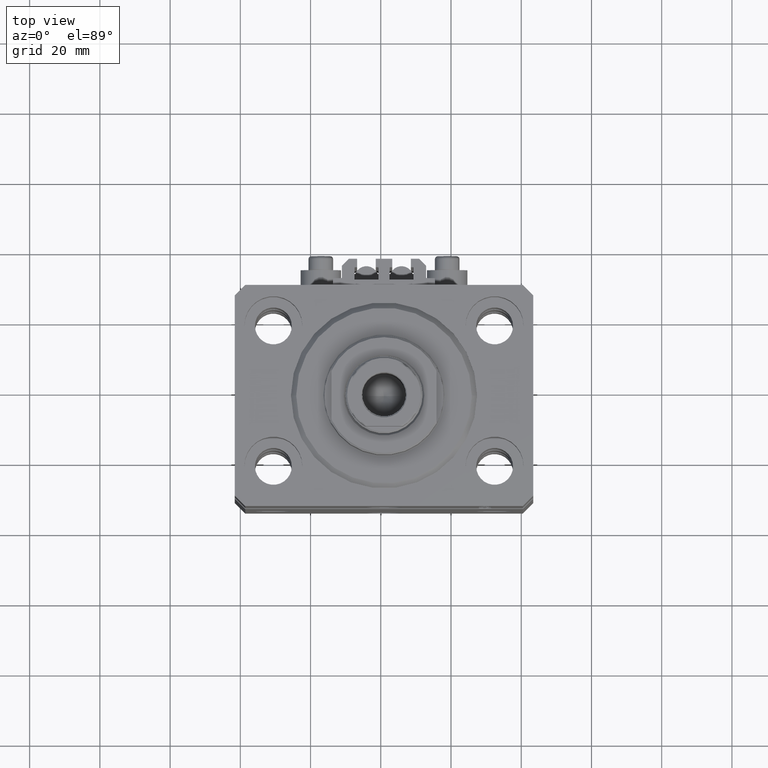
[diagram: clean part render]
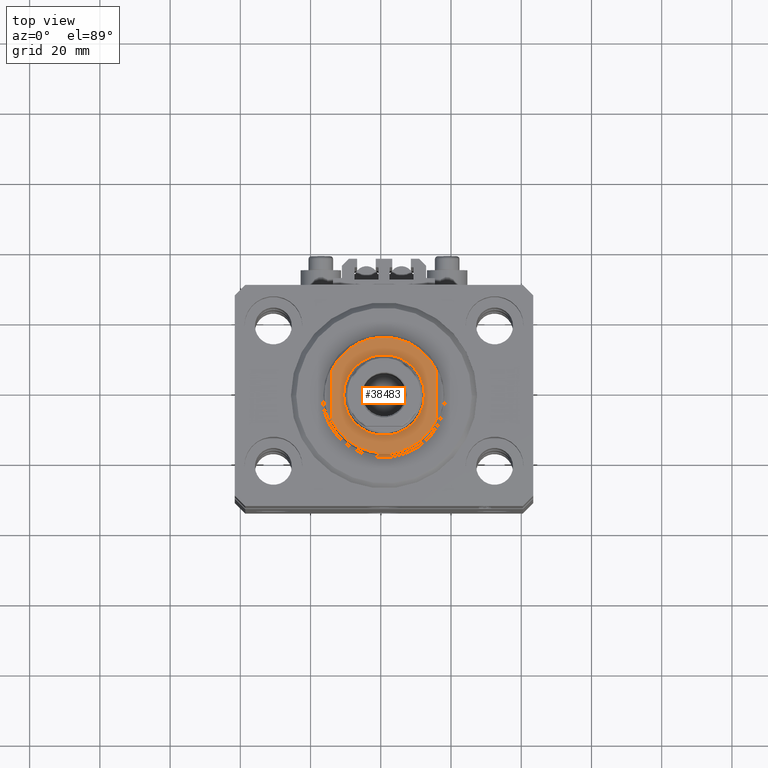
[diagram: same view with one face highlighted and labeled with its STEP entity id]
A machine part, top view. The second image highlights one B-rep face of the part: STEP entity #38483.
In plain terms, the highlighted planar face has unit normal (0, 0, 1).
Its self-contained STEP definition (entity closure, byte-faithful):
#845 = DIRECTION ( 'NONE',  ( -0.000000000000000000, -0.000000000000000000, 1.000000000000000000 ) ) ;
#1237 = AXIS2_PLACEMENT_3D ( 'NONE', #25934, #25696, #11089 ) ;
#2724 = ORIENTED_EDGE ( 'NONE', *, *, #17054, .T. ) ;
#3022 = CIRCLE ( 'NONE', #5373, 11.50000000000001776 ) ;
#3248 = CIRCLE ( 'NONE', #20607, 16.50000000000002132 ) ;
#4912 = CARTESIAN_POINT ( 'NONE',  ( -15.00000000000000000, -42.42640687119285303, -7.000000000000000000 ) ) ;
#5373 = AXIS2_PLACEMENT_3D ( 'NONE', #8024, #845, #46584 ) ;
#5876 = CARTESIAN_POINT ( 'NONE',  ( -14.99999999999999645, -6.873863542433817031, -7.000000000000000000 ) ) ;
#6098 = LINE ( 'NONE', #44194, #25763 ) ;
#6993 = DIRECTION ( 'NONE',  ( -1.000000000000000000, 0.000000000000000000, 0.000000000000000000 ) ) ;
#8024 = CARTESIAN_POINT ( 'NONE',  ( 0.000000000000000000, 0.000000000000000000, -7.000000000000000000 ) ) ;
#8501 = VERTEX_POINT ( 'NONE', #29513 ) ;
#9155 = ORIENTED_EDGE ( 'NONE', *, *, #35829, .T. ) ;
#10431 = ORIENTED_EDGE ( 'NONE', *, *, #34799, .F. ) ;
#11089 = DIRECTION ( 'NONE',  ( -1.000000000000000000, 0.000000000000000000, 0.000000000000000000 ) ) ;
#11197 = DIRECTION ( 'NONE',  ( 0.000000000000000000, 0.000000000000000000, -1.000000000000000000 ) ) ;
#11364 = VERTEX_POINT ( 'NONE', #5876 ) ;
#11861 = LINE ( 'NONE', #4912, #29778 ) ;
#13461 = AXIS2_PLACEMENT_3D ( 'NONE', #17266, #26085, #43486 ) ;
#14869 = ORIENTED_EDGE ( 'NONE', *, *, #35983, .T. ) ;
#17054 = EDGE_CURVE ( 'NONE', #39436, #8501, #3248, .T. ) ;
#17266 = CARTESIAN_POINT ( 'NONE',  ( 0.000000000000000000, 0.000000000000000000, -7.000000000000000000 ) ) ;
#17656 = EDGE_LOOP ( 'NONE', ( #2724, #14869, #9155, #10431 ) ) ;
#19549 = AXIS2_PLACEMENT_3D ( 'NONE', #37076, #32634, #40793 ) ;
#20607 = AXIS2_PLACEMENT_3D ( 'NONE', #29498, #11197, #6993 ) ;
#21251 = FACE_OUTER_BOUND ( 'NONE', #17656, .T. ) ;
#21385 = CIRCLE ( 'NONE', #13461, 11.50000000000001776 ) ;
#22266 = CARTESIAN_POINT ( 'NONE',  ( 14.99999999999999645, -6.873863542433817031, -7.000000000000000000 ) ) ;
#24081 = VERTEX_POINT ( 'NONE', #33450 ) ;
#25696 = DIRECTION ( 'NONE',  ( 0.000000000000000000, 0.000000000000000000, -1.000000000000000000 ) ) ;
#25763 = VECTOR ( 'NONE', #28349, 1000.000000000000000 ) ;
#25934 = CARTESIAN_POINT ( 'NONE',  ( 0.000000000000000000, 0.000000000000000000, -7.000000000000000000 ) ) ;
#26085 = DIRECTION ( 'NONE',  ( -0.000000000000000000, -0.000000000000000000, 1.000000000000000000 ) ) ;
#26542 = CIRCLE ( 'NONE', #1237, 16.50000000000002132 ) ;
#26994 = VERTEX_POINT ( 'NONE', #30263 ) ;
#28349 = DIRECTION ( 'NONE',  ( 0.000000000000000000, -1.000000000000000000, -0.000000000000000000 ) ) ;
#29091 = VERTEX_POINT ( 'NONE', #22266 ) ;
#29498 = CARTESIAN_POINT ( 'NONE',  ( 0.000000000000000000, 0.000000000000000000, -7.000000000000000000 ) ) ;
#29513 = CARTESIAN_POINT ( 'NONE',  ( 14.99999999999999645, 6.873863542433817031, -7.000000000000000000 ) ) ;
#29778 = VECTOR ( 'NONE', #38328, 1000.000000000000000 ) ;
#30263 = CARTESIAN_POINT ( 'NONE',  ( 11.50000000000001776, 1.408343819019458543E-15, -7.000000000000000000 ) ) ;
#32634 = DIRECTION ( 'NONE',  ( 0.000000000000000000, 0.000000000000000000, -1.000000000000000000 ) ) ;
#33450 = CARTESIAN_POINT ( 'NONE',  ( -11.50000000000001776, 0.000000000000000000, -7.000000000000000000 ) ) ;
#34799 = EDGE_CURVE ( 'NONE', #39436, #11364, #11861, .T. ) ;
#35212 = EDGE_LOOP ( 'NONE', ( #38714, #44168 ) ) ;
#35829 = EDGE_CURVE ( 'NONE', #29091, #11364, #26542, .T. ) ;
#35983 = EDGE_CURVE ( 'NONE', #8501, #29091, #6098, .T. ) ;
#37076 = CARTESIAN_POINT ( 'NONE',  ( 0.000000000000000000, 0.000000000000000000, -7.000000000000000000 ) ) ;
#38328 = DIRECTION ( 'NONE',  ( -0.000000000000000000, -1.000000000000000000, -0.000000000000000000 ) ) ;
#38483 = ADVANCED_FACE ( 'NONE', ( #47967, #21251 ), #44502, .T. ) ;
#38714 = ORIENTED_EDGE ( 'NONE', *, *, #40827, .T. ) ;
#39436 = VERTEX_POINT ( 'NONE', #42253 ) ;
#40793 = DIRECTION ( 'NONE',  ( -1.000000000000000000, 0.000000000000000000, -0.000000000000000000 ) ) ;
#40827 = EDGE_CURVE ( 'NONE', #24081, #26994, #3022, .T. ) ;
#42253 = CARTESIAN_POINT ( 'NONE',  ( -14.99999999999999645, 6.873863542433817031, -7.000000000000000000 ) ) ;
#43486 = DIRECTION ( 'NONE',  ( -1.000000000000000000, 0.000000000000000000, 0.000000000000000000 ) ) ;
#44168 = ORIENTED_EDGE ( 'NONE', *, *, #46223, .T. ) ;
#44194 = CARTESIAN_POINT ( 'NONE',  ( 15.00000000000000000, -42.42640687119285303, -7.000000000000000000 ) ) ;
#44502 = PLANE ( 'NONE',  #19549 ) ;
#46223 = EDGE_CURVE ( 'NONE', #26994, #24081, #21385, .T. ) ;
#46584 = DIRECTION ( 'NONE',  ( -1.000000000000000000, 0.000000000000000000, 0.000000000000000000 ) ) ;
#47967 = FACE_BOUND ( 'NONE', #35212, .T. ) ;